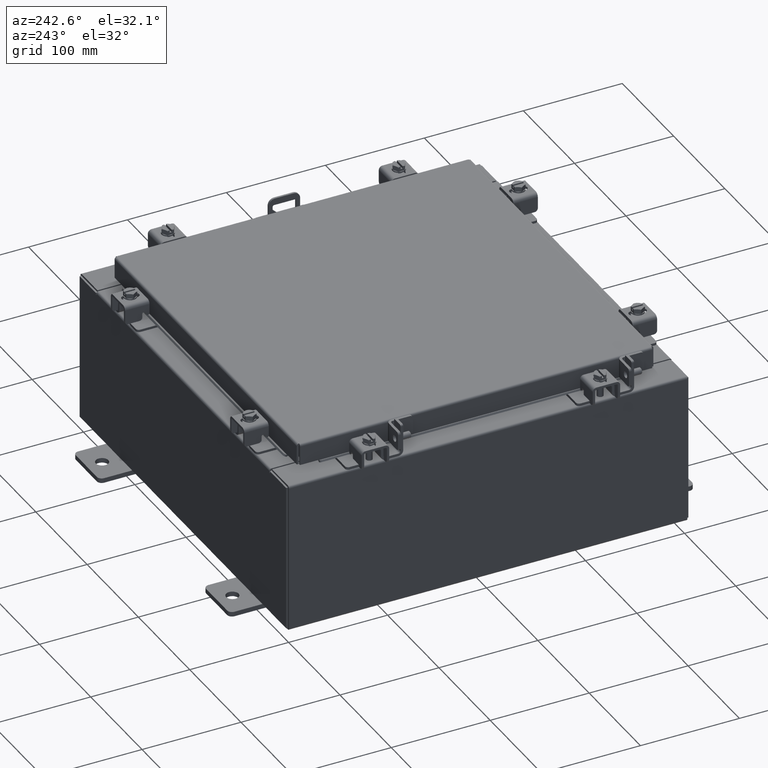
[diagram: clean part render]
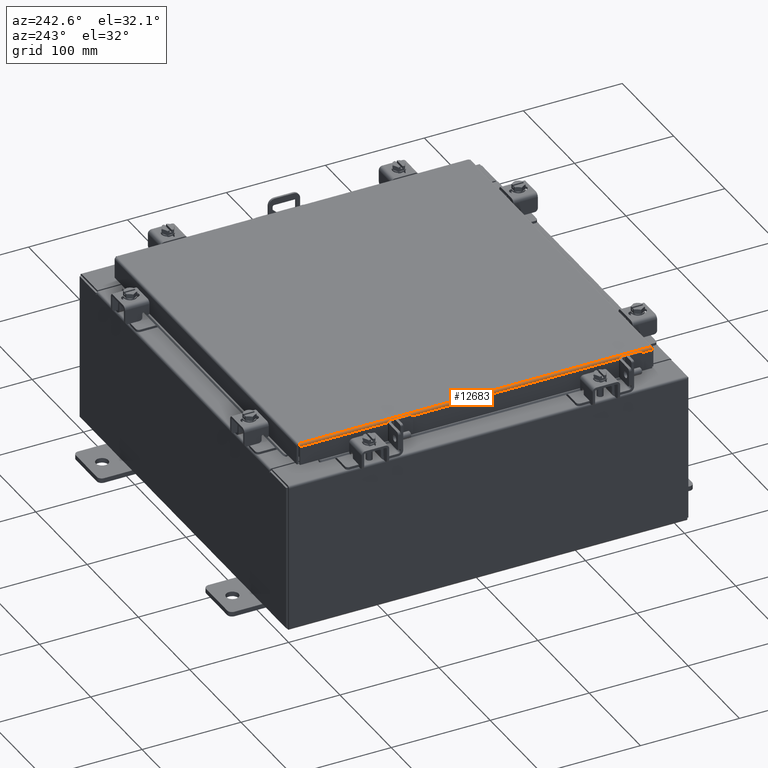
[diagram: same view with one face highlighted and labeled with its STEP entity id]
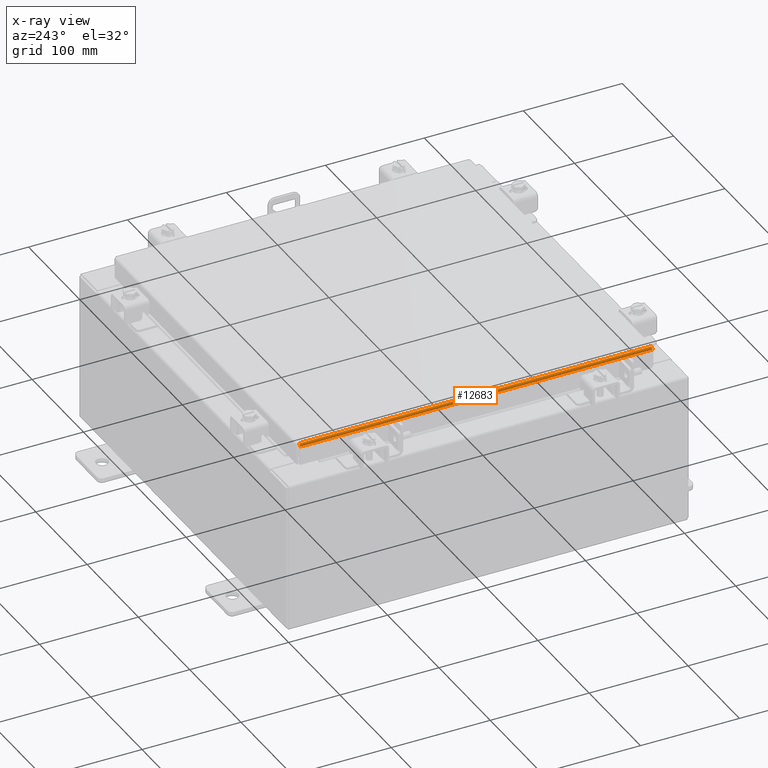
[diagram: x-ray of the same camera — body ghosted, the highlighted face saturated]
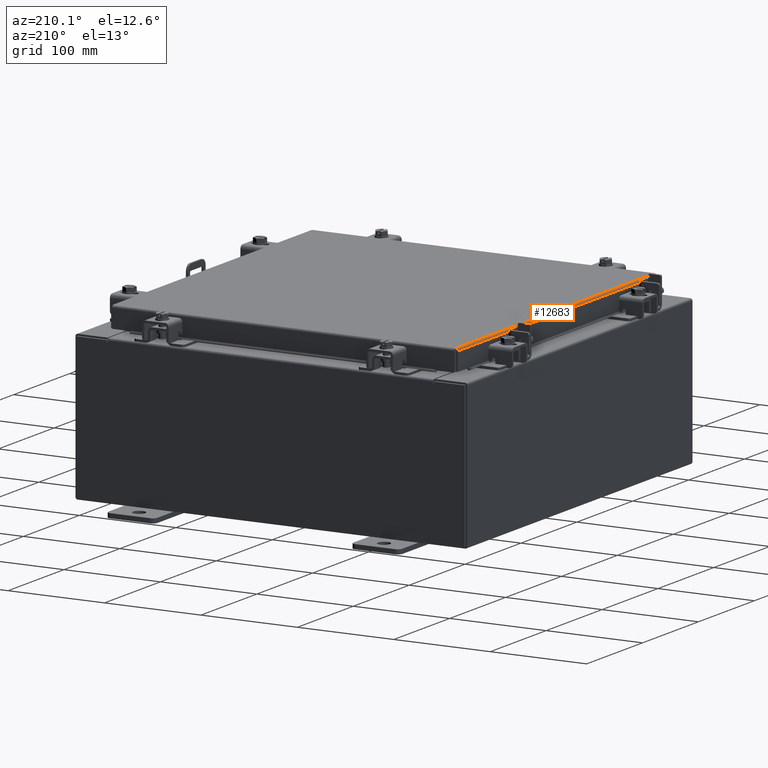
[diagram: same view with one face highlighted and labeled with its STEP entity id]
A machine part, auxiliary view. The second image highlights one B-rep face of the part: STEP entity #12683.
The next image is the same camera in x-ray: the body ghosted, the highlighted face saturated — about 0% of this face is hidden behind the body in this view.
A second angle (auxiliary view) of the same face is appended — the face is thin or edge-on in the first view.
In plain terms, the highlighted cylindrical surface (edge-blend (fillet) strip) has radius 2.2276 mm, axis along (0, 1, 0).
Its self-contained STEP definition (entity closure, byte-faithful):
#371 = CARTESIAN_POINT ( 'NONE',  ( -7.001779903154992500, 7.006204822031357100, 3.426148228382157600E-016 ) ) ;
#384 = CARTESIAN_POINT ( 'NONE',  ( -7.066931066258671700, -7.005538576250847500, -0.04353261542147385900 ) ) ;
#400 = EDGE_LOOP ( 'NONE', ( #3458, #6019, #13928, #2899 ) ) ;
#809 = VERTEX_POINT ( 'NONE', #17181 ) ;
#985 = CYLINDRICAL_SURFACE ( 'NONE', #7016, 0.08770000000000026400 ) ;
#1027 = CARTESIAN_POINT ( 'NONE',  ( -7.078000000000001200, 7.005157864376269700, -0.08769999999999897300 ) ) ;
#1636 = LINE ( 'NONE', #12305, #14110 ) ;
#1719 = CARTESIAN_POINT ( 'NONE',  ( -6.990300000000001300, -7.006300000000000400, -2.048885995248197400E-016 ) ) ;
#2005 = CARTESIAN_POINT ( 'NONE',  ( -7.075717403743810000, 7.005348220313559100, -0.06474471054168771900 ) ) ;
#2100 = CARTESIAN_POINT ( 'NONE',  ( -7.078000000000001200, -7.005253042344914900, -0.07622009684501027100 ) ) ;
#2899 = ORIENTED_EDGE ( 'NONE', *, *, #13486, .F. ) ;
#3458 = ORIENTED_EDGE ( 'NONE', *, *, #17923, .F. ) ;
#5475 = B_SPLINE_CURVE_WITH_KNOTS ( 'NONE', 3,
 ( #17316, #10440, #2005, #7123, #19019, #8816, #20757, #10518, #371, #12248 ),
 .UNSPECIFIED., .F., .F.,
 ( 4, 2, 2, 2, 4 ),
 ( 0.0000000000000000000, 0.2500000000000000000, 0.5000000000000000000, 0.7500000000000000000, 1.000000000000000000 ),
 .UNSPECIFIED. ) ;
#6019 = ORIENTED_EDGE ( 'NONE', *, *, #9212, .F. ) ;
#6354 = CARTESIAN_POINT ( 'NONE',  ( -6.990300000000001300, 7.006300000000000400, -0.08769999999999975000 ) ) ;
#7016 = AXIS2_PLACEMENT_3D ( 'NONE', #6354, #14846, #9760 ) ;
#7123 = CARTESIAN_POINT ( 'NONE',  ( -7.066931066258666400, 7.005538576250844900, -0.04353261542146956400 ) ) ;
#7638 = CARTESIAN_POINT ( 'NONE',  ( -7.078000000000001200, -7.094000000000000300, -0.08770000000000007000 ) ) ;
#7773 = EDGE_CURVE ( 'NONE', #14501, #9424, #17270, .T. ) ;
#8739 = VECTOR ( 'NONE', #19551, 39.37007874015748100 ) ;
#8816 = CARTESIAN_POINT ( 'NONE',  ( -7.044195747341801100, 7.005824110156780200, -0.01756921792167830500 ) ) ;
#8827 = CARTESIAN_POINT ( 'NONE',  ( -7.034467384578526600, -7.005919288125420900, -0.01106893374133180600 ) ) ;
#9212 = EDGE_CURVE ( 'NONE', #14501, #11082, #5475, .T. ) ;
#9424 = VERTEX_POINT ( 'NONE', #19623 ) ;
#9760 = DIRECTION ( 'NONE',  ( -1.000000000000000000, 0.0000000000000000000, 2.725618009642215600E-015 ) ) ;
#10039 = B_SPLINE_CURVE_WITH_KNOTS ( 'NONE', 3,
 ( #1719, #15249, #18729, #8827, #20774, #10534, #384, #12258, #2100, #13970 ),
 .UNSPECIFIED., .F., .F.,
 ( 4, 2, 2, 2, 4 ),
 ( 0.0000000000000000000, 0.2500000000000000000, 0.5000000000000000000, 0.7500000000000000000, 1.000000000000000000 ),
 .UNSPECIFIED. ) ;
#10440 = CARTESIAN_POINT ( 'NONE',  ( -7.078000000000001200, 7.005253042344914900, -0.07622009684500344300 ) ) ;
#10518 = CARTESIAN_POINT ( 'NONE',  ( -7.013255289458308900, 7.006109644062711100, -0.002282596256188245100 ) ) ;
#10534 = CARTESIAN_POINT ( 'NONE',  ( -7.060430782078322300, -7.005633754219490000, -0.03380425265820125700 ) ) ;
#11082 = VERTEX_POINT ( 'NONE', #16285 ) ;
#12248 = CARTESIAN_POINT ( 'NONE',  ( -6.990300000000001300, 7.006300000000000400, 3.414809992080329000E-016 ) ) ;
#12258 = CARTESIAN_POINT ( 'NONE',  ( -7.075717403743813500, -7.005348220313559100, -0.06474471054169367300 ) ) ;
#12305 = CARTESIAN_POINT ( 'NONE',  ( -6.990300000000001300, 7.006300000000000400, 3.414809992080329000E-016 ) ) ;
#12683 = ADVANCED_FACE ( 'NONE', ( #14538 ), #985, .T. ) ;
#13486 = EDGE_CURVE ( 'NONE', #809, #9424, #10039, .T. ) ;
#13928 = ORIENTED_EDGE ( 'NONE', *, *, #7773, .T. ) ;
#13970 = CARTESIAN_POINT ( 'NONE',  ( -7.078000000000001200, -7.005157864376269700, -0.08769999999999951400 ) ) ;
#14037 = DIRECTION ( 'NONE',  ( 0.0000000000000000000, -1.000000000000000000, 0.0000000000000000000 ) ) ;
#14110 = VECTOR ( 'NONE', #14037, 39.37007874015748100 ) ;
#14501 = VERTEX_POINT ( 'NONE', #1027 ) ;
#14538 = FACE_OUTER_BOUND ( 'NONE', #400, .T. ) ;
#14846 = DIRECTION ( 'NONE',  ( -0.0000000000000000000, 1.000000000000000000, -0.0000000000000000000 ) ) ;
#15249 = CARTESIAN_POINT ( 'NONE',  ( -7.001779903154995200, -7.006204822031357100, 3.421479542846109600E-016 ) ) ;
#16285 = CARTESIAN_POINT ( 'NONE',  ( -6.990300000000001300, 7.006300000000000400, 3.414809992080329000E-016 ) ) ;
#17181 = CARTESIAN_POINT ( 'NONE',  ( -6.990300000000001300, -7.006300000000000400, -2.048885995248197400E-016 ) ) ;
#17270 = LINE ( 'NONE', #7638, #8739 ) ;
#17316 = CARTESIAN_POINT ( 'NONE',  ( -7.078000000000001200, 7.005157864376269700, -0.08769999999999897300 ) ) ;
#17923 = EDGE_CURVE ( 'NONE', #11082, #809, #1636, .T. ) ;
#18729 = CARTESIAN_POINT ( 'NONE',  ( -7.013255289458311600, -7.006109644062711100, -0.002282596256188504900 ) ) ;
#19019 = CARTESIAN_POINT ( 'NONE',  ( -7.060430782078321400, 7.005633754219491700, -0.03380425265819786400 ) ) ;
#19551 = DIRECTION ( 'NONE',  ( 1.356913280217631200E-031, -1.000000000000000000, -7.701855070945201600E-017 ) ) ;
#19623 = CARTESIAN_POINT ( 'NONE',  ( -7.078000000000001200, -7.005157864376269700, -0.08769999999999951400 ) ) ;
#20757 = CARTESIAN_POINT ( 'NONE',  ( -7.034467384578528400, 7.005919288125422600, -0.01106893374133063200 ) ) ;
#20774 = CARTESIAN_POINT ( 'NONE',  ( -7.044195747341803800, -7.005824110156779300, -0.01756921792168015000 ) ) ;